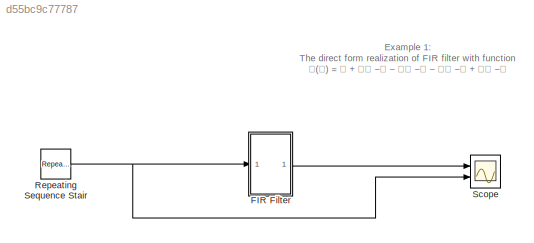
MODEL slx_d55bc9c77787
KIND model
CONFIG AbsTol = auto
CONFIG EnableMultiTasking = off
CONFIG FixedStep = auto
CONFIG MaxStep = auto
CONFIG MinStep = auto
CONFIG RelTol = 1e-3
CONFIG SampleTimeConstraint = Unconstrained
CONFIG Solver = VariableStepAuto
CONFIG SolverName = VariableStepAuto
CONFIG StartTime = 0.0
CONFIG StopTime = 10.0
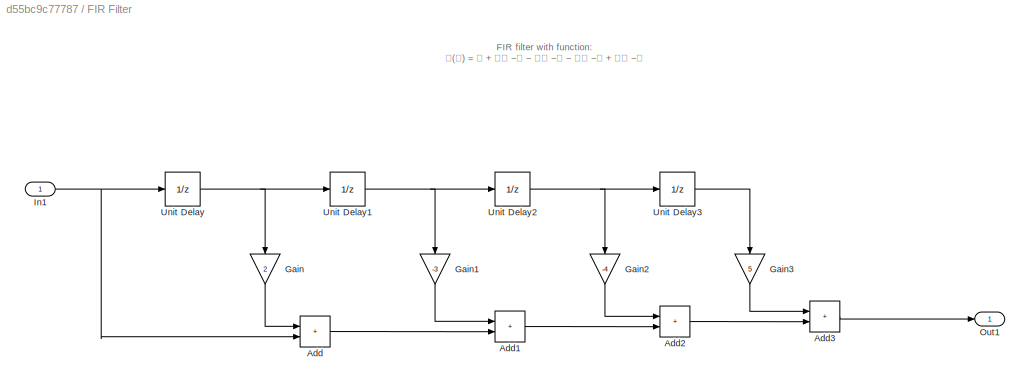
BLOCK [SubSystem] FIR Filter
  Ports = [1, 1]
  RequestExecContextInheritance = off
BLOCK [Sum] FIR Filter/Add
  IconShape = rectangular
  Ports = [2, 1]
BLOCK [Sum] FIR Filter/Add1
  IconShape = rectangular
  Ports = [2, 1]
BLOCK [Sum] FIR Filter/Add2
  IconShape = rectangular
  Ports = [2, 1]
BLOCK [Sum] FIR Filter/Add3
  IconShape = rectangular
  Ports = [2, 1]
BLOCK [Gain] FIR Filter/Gain
  Gain = 2
  NameLocation = left
BLOCK [Gain] FIR Filter/Gain1
  Gain = -3
  NameLocation = left
BLOCK [Gain] FIR Filter/Gain2
  Gain = -4
  NameLocation = left
BLOCK [Gain] FIR Filter/Gain3
  Gain = 5
  NameLocation = left
BLOCK [Inport] FIR Filter/In1
BLOCK [Outport] FIR Filter/Out1
BLOCK [UnitDelay] FIR Filter/Unit Delay
  HasFrameUpgradeWarning = on
  SampleTime = -1
BLOCK [UnitDelay] FIR Filter/Unit Delay1
  HasFrameUpgradeWarning = on
  SampleTime = -1
BLOCK [UnitDelay] FIR Filter/Unit Delay2
  HasFrameUpgradeWarning = on
  SampleTime = -1
BLOCK [UnitDelay] FIR Filter/Unit Delay3
  HasFrameUpgradeWarning = on
  SampleTime = -1
BLOCK [Reference] Repeating Sequence Stair  REF=simulink/Sources/Repeating
Sequence
Stair
  Ports = [0, 1]
  SourceBlock = simulink/Sources/Repeating\nSequence\nStair
  SourceProductBaseCode = SL
  SourceType = Repeating Sequence Stair
BLOCK [Scope] Scope
  Floating = off
  NumInputPorts = 2
  Ports = [2]
  ScopeSpecificationString = Simulink.scopes.TimeScopeBlockCfg('CurrentConfiguration', extmgr.ConfigurationSet(extmgr.Configuration('Core','General UI',true),extmgr.Configuration('Core','Source UI',true),extmgr.Configuration('Sources','WiredSimulink',true),extmgr.Configuration('Visuals','Time Domain',true,'SerializedDisplays',{struct('MinYLimReal','-15.5','MaxYLimReal','19.5','YLabelReal','','MinYLimMag','0.00000','MaxYLimMag...<+1338ch>
ANNOTATION (root): Example 1: The direct form realization of FIR filter with function 𝐇(𝐳) = 𝟏 + 𝟐𝐳 −𝟏 − 𝟑𝐳 −𝟐 − 𝟒𝐳 −𝟑 + 𝟓𝐳 −𝟒
ANNOTATION FIR Filter: FIR filter with function: 𝐇(𝐳) = 𝟏 + 𝟐𝐳 −𝟏 − 𝟑𝐳 −𝟐 − 𝟒𝐳 −𝟑 + 𝟓𝐳 −𝟒
LINE FIR Filter/Add1:1 -> FIR Filter/Add2:2
LINE FIR Filter/Add2:1 -> FIR Filter/Add3:2
LINE FIR Filter/Add3:1 -> FIR Filter/Out1:1
LINE FIR Filter/Add:1 -> FIR Filter/Add1:2
LINE FIR Filter/Gain1:1 -> FIR Filter/Add1:1
LINE FIR Filter/Gain2:1 -> FIR Filter/Add2:1
LINE FIR Filter/Gain3:1 -> FIR Filter/Add3:1
LINE FIR Filter/Gain:1 -> FIR Filter/Add:1
NET FIR Filter/In1:1 -> FIR Filter/Add:2, FIR Filter/Unit Delay:1
NET FIR Filter/Unit Delay1:1 -> FIR Filter/Gain1:1, FIR Filter/Unit Delay2:1
NET FIR Filter/Unit Delay2:1 -> FIR Filter/Gain2:1, FIR Filter/Unit Delay3:1
LINE FIR Filter/Unit Delay3:1 -> FIR Filter/Gain3:1
NET FIR Filter/Unit Delay:1 -> FIR Filter/Gain:1, FIR Filter/Unit Delay1:1
LINE FIR Filter:1 -> Scope:1
NET Repeating Sequence Stair:1 -> FIR Filter:1, Scope:2
note: NET lines group one-source signal fan-out (src -> all destinations, sorted); 1:1 wires keep LINE
